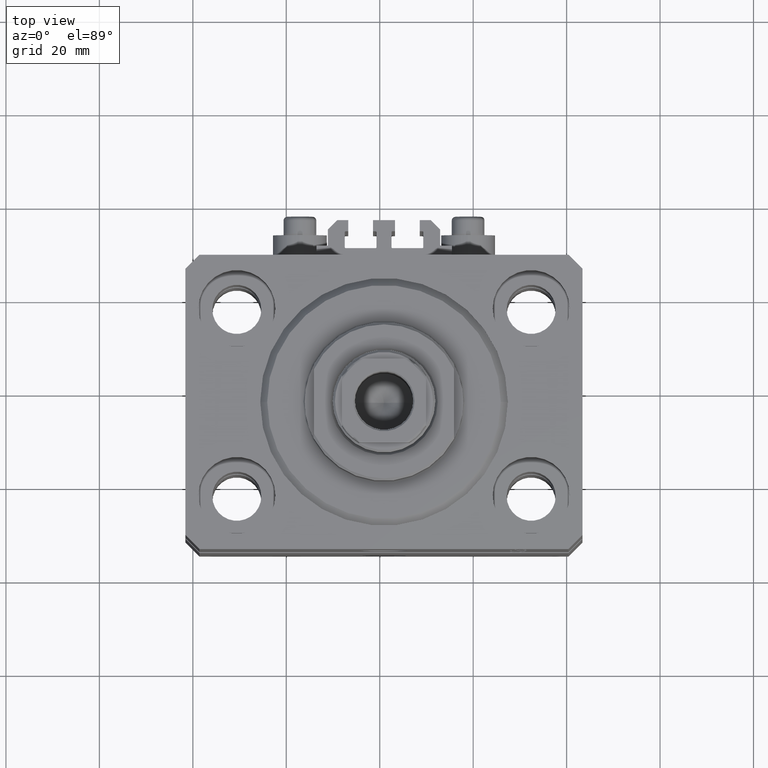
[diagram: clean part render]
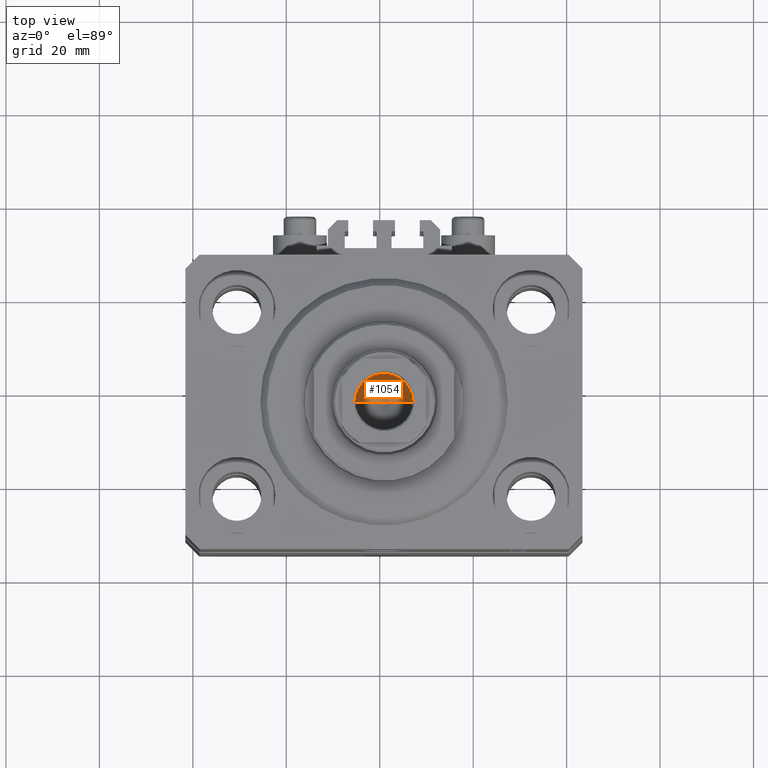
[diagram: same view with one face highlighted and labeled with its STEP entity id]
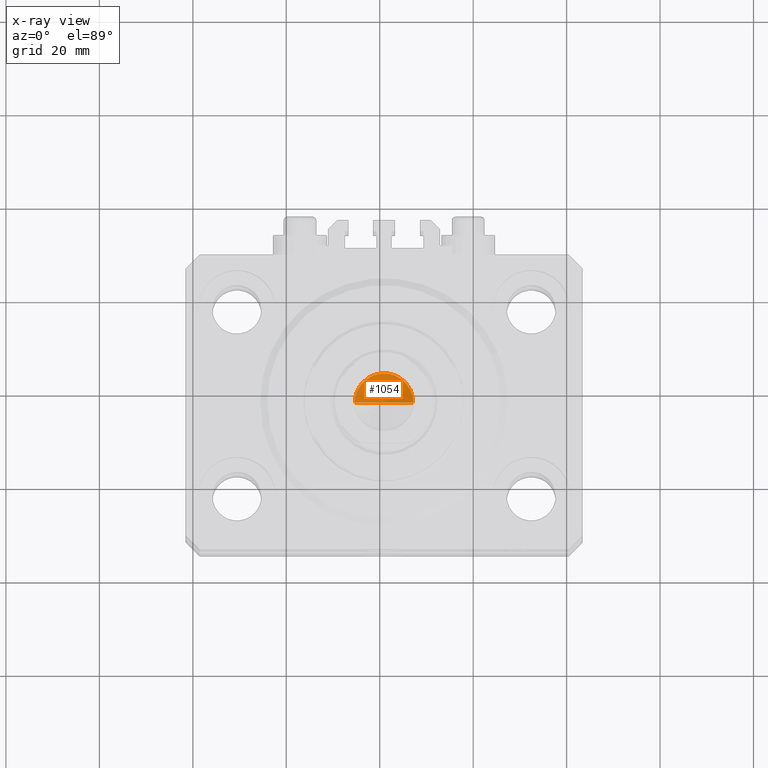
[diagram: x-ray of the same camera — body ghosted, the highlighted face saturated]
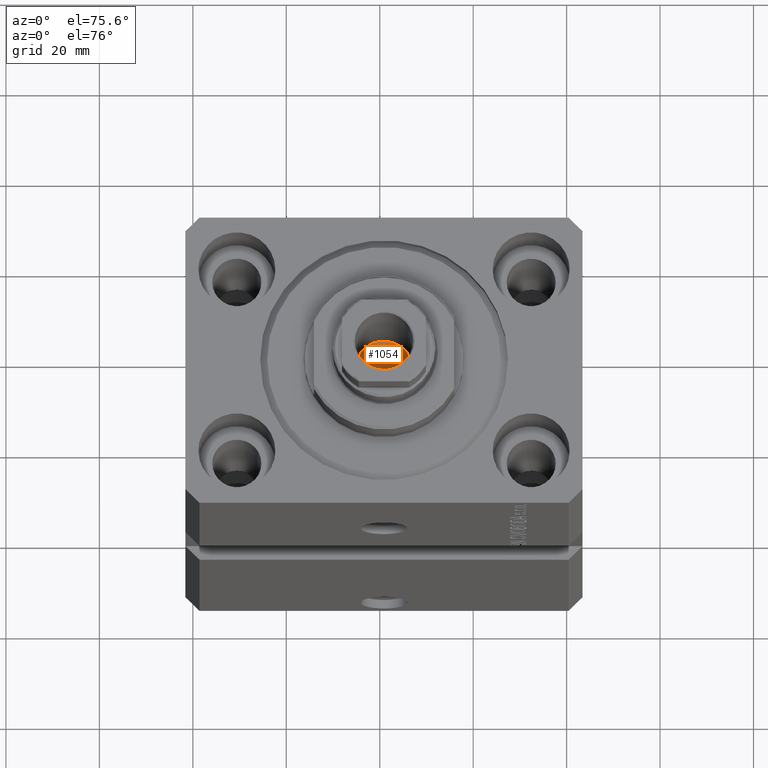
[diagram: same view with one face highlighted and labeled with its STEP entity id]
A machine part, top view. The second image highlights one B-rep face of the part: STEP entity #1054.
The next image is the same camera in x-ray: the body ghosted, the highlighted face saturated — about 0% of this face is hidden behind the body in this view.
A second angle (auxiliary view) of the same face is appended — the face is thin or edge-on in the first view.
In plain terms, the highlighted conical surface has half-angle 59 deg.
Its self-contained STEP definition (entity closure, byte-faithful):
#591 = DIRECTION ( 'NONE',  ( -0.000000000000000000, -0.000000000000000000, 1.000000000000000000 ) ) ;
#1054 = ADVANCED_FACE ( 'NONE', ( #22482 ), #39915, .F. ) ;
#5948 = EDGE_CURVE ( 'NONE', #20309, #43765, #18977, .T. ) ;
#6025 = CIRCLE ( 'NONE', #15223, 6.249999999999993783 ) ;
#6242 = DIRECTION ( 'NONE',  ( 1.000000000000000000, 0.000000000000000000, 0.000000000000000000 ) ) ;
#7162 = ORIENTED_EDGE ( 'NONE', *, *, #32412, .T. ) ;
#7224 = CARTESIAN_POINT ( 'NONE',  ( -6.249999999999993783, 7.654042494670949718E-16, 73.59999999999999432 ) ) ;
#9408 = CARTESIAN_POINT ( 'NONE',  ( -6.249999999999993783, 7.654042494670949718E-16, 73.59999999999999432 ) ) ;
#13232 = CARTESIAN_POINT ( 'NONE',  ( 0.000000000000000000, 0.000000000000000000, 73.59999999999999432 ) ) ;
#15223 = AXIS2_PLACEMENT_3D ( 'NONE', #13232, #39189, #6242 ) ;
#17387 = EDGE_LOOP ( 'NONE', ( #17627, #23346, #7162 ) ) ;
#17627 = ORIENTED_EDGE ( 'NONE', *, *, #27217, .F. ) ;
#18977 = LINE ( 'NONE', #21880, #32420 ) ;
#20309 = VERTEX_POINT ( 'NONE', #24151 ) ;
#21880 = CARTESIAN_POINT ( 'NONE',  ( 6.249999999999993783, 0.000000000000000000, 73.59999999999999432 ) ) ;
#22482 = FACE_OUTER_BOUND ( 'NONE', #17387, .T. ) ;
#23346 = ORIENTED_EDGE ( 'NONE', *, *, #5948, .T. ) ;
#24151 = CARTESIAN_POINT ( 'NONE',  ( -7.434177670704979810E-15, 0.000000000000000000, 69.84462113107775849 ) ) ;
#24404 = CARTESIAN_POINT ( 'NONE',  ( 6.249999999999993783, 0.000000000000000000, 73.59999999999999432 ) ) ;
#26330 = DIRECTION ( 'NONE',  ( 1.000000000000000000, 0.000000000000000000, 0.000000000000000000 ) ) ;
#27217 = EDGE_CURVE ( 'NONE', #20309, #37753, #36543, .T. ) ;
#32412 = EDGE_CURVE ( 'NONE', #43765, #37753, #6025, .T. ) ;
#32420 = VECTOR ( 'NONE', #32934, 1000.000000000000114 ) ;
#32934 = DIRECTION ( 'NONE',  ( 0.8571673007021122226, 0.000000000000000000, 0.5150380749100541555 ) ) ;
#34503 = AXIS2_PLACEMENT_3D ( 'NONE', #37155, #591, #26330 ) ;
#36543 = LINE ( 'NONE', #7224, #42841 ) ;
#36774 = DIRECTION ( 'NONE',  ( -0.8571673007021122226, 1.049727191138618696E-16, 0.5150380749100541555 ) ) ;
#37155 = CARTESIAN_POINT ( 'NONE',  ( 0.000000000000000000, 0.000000000000000000, 73.59999999999999432 ) ) ;
#37753 = VERTEX_POINT ( 'NONE', #9408 ) ;
#39189 = DIRECTION ( 'NONE',  ( -0.000000000000000000, -0.000000000000000000, 1.000000000000000000 ) ) ;
#39915 = CONICAL_SURFACE ( 'NONE', #34503, 6.249999999999993783, 1.029744258676654534 ) ;
#42841 = VECTOR ( 'NONE', #36774, 1000.000000000000114 ) ;
#43765 = VERTEX_POINT ( 'NONE', #24404 ) ;